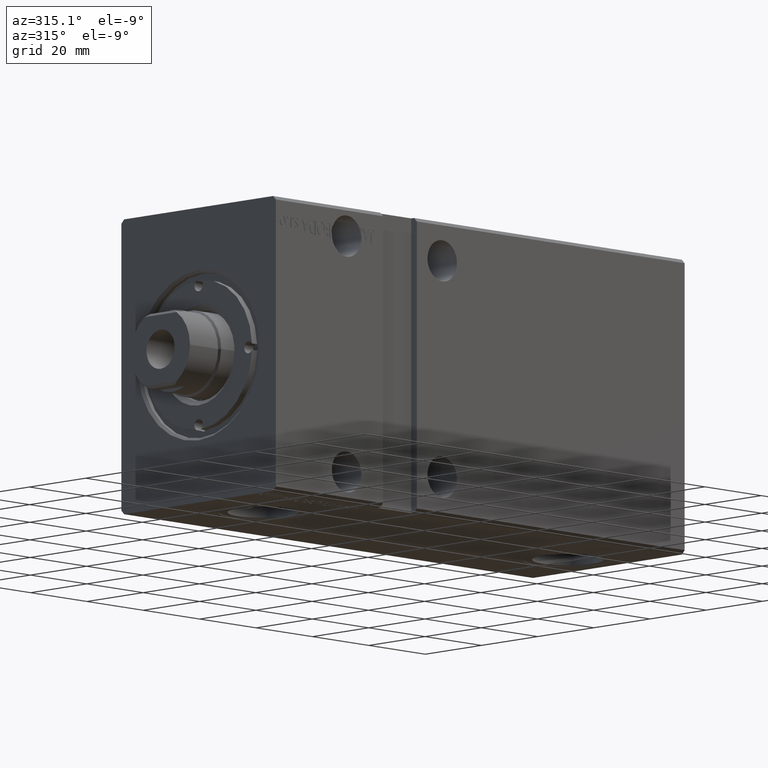
[diagram: clean part render]
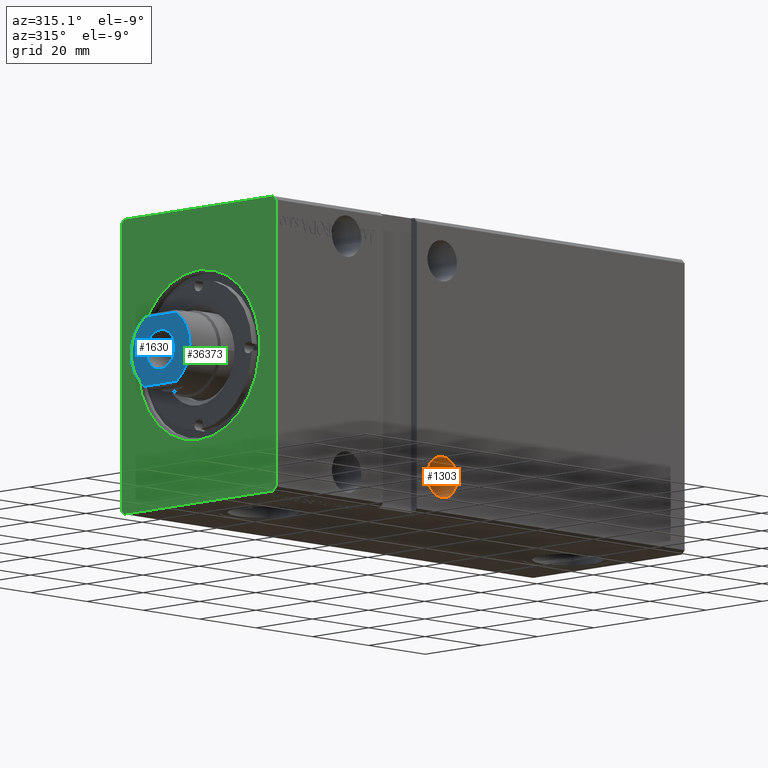
[diagram: same view with three faces highlighted in distinct colors, each labeled with its STEP entity id]
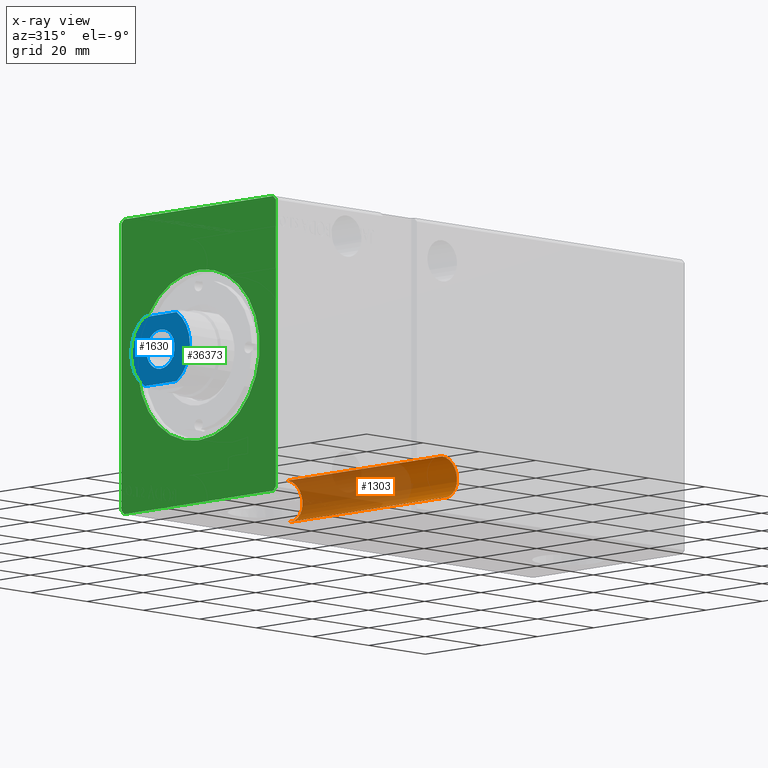
[diagram: x-ray of the same camera — body ghosted, the three highlighted faces saturated]
A machine part, auxiliary view with three faces highlighted in distinct colors.
The next image is the same camera in x-ray (body ghosted, the three faces saturated) — at least one of them is partly hidden behind the body in this view.
Their STEP definitions:

[orange] entity #1303 — the highlighted cylindrical surface (edge-blend (fillet) strip) has radius 5.25 mm, axis along (-0, -1, -0).
#1303 = ADVANCED_FACE ( 'NONE', ( #11130 ), #25759, .F. ) ;
#2479 = ORIENTED_EDGE ( 'NONE', *, *, #24498, .F. ) ;
#6162 = VECTOR ( 'NONE', #18278, 1000.000000000000000 ) ;
#8673 = DIRECTION ( 'NONE',  ( 0.000000000000000000, 0.000000000000000000, -1.000000000000000000 ) ) ;
#9366 = AXIS2_PLACEMENT_3D ( 'NONE', #23878, #36058, #8673 ) ;
#9767 = VERTEX_POINT ( 'NONE', #25660 ) ;
#9805 = VERTEX_POINT ( 'NONE', #28672 ) ;
#10534 = DIRECTION ( 'NONE',  ( -0.000000000000000000, -1.000000000000000000, -5.507058653894626469E-17 ) ) ;
#10792 = CARTESIAN_POINT ( 'NONE',  ( 59.00000000000001421, 27.50000000000001066, -32.75000000000000711 ) ) ;
#11057 = LINE ( 'NONE', #26076, #25307 ) ;
#11130 = FACE_OUTER_BOUND ( 'NONE', #13575, .T. ) ;
#13575 = EDGE_LOOP ( 'NONE', ( #21976, #2479, #20693, #24680 ) ) ;
#13950 = DIRECTION ( 'NONE',  ( 0.000000000000000000, 0.000000000000000000, -1.000000000000000000 ) ) ;
#14848 = EDGE_CURVE ( 'NONE', #33471, #9767, #15676, .T. ) ;
#15676 = LINE ( 'NONE', #24666, #6162 ) ;
#16793 = CARTESIAN_POINT ( 'NONE',  ( 59.00000000000001421, 27.50000000000001066, -22.25000000000000000 ) ) ;
#17158 = CARTESIAN_POINT ( 'NONE',  ( 59.00000000000001421, 62.50000000000002842, -27.50000000000000000 ) ) ;
#18278 = DIRECTION ( 'NONE',  ( -0.000000000000000000, -1.000000000000000000, -5.507058653894626469E-17 ) ) ;
#18982 = CIRCLE ( 'NONE', #9366, 5.250000000000004441 ) ;
#19940 = AXIS2_PLACEMENT_3D ( 'NONE', #17158, #10534, #13950 ) ;
#20693 = ORIENTED_EDGE ( 'NONE', *, *, #14848, .T. ) ;
#21976 = ORIENTED_EDGE ( 'NONE', *, *, #37158, .F. ) ;
#22674 = CARTESIAN_POINT ( 'NONE',  ( 59.00000000000001421, -27.50000000000000355, -27.50000000000000355 ) ) ;
#22733 = VERTEX_POINT ( 'NONE', #16793 ) ;
#23878 = CARTESIAN_POINT ( 'NONE',  ( 59.00000000000001421, 27.50000000000001066, -27.50000000000000355 ) ) ;
#24064 = CIRCLE ( 'NONE', #25972, 5.250000000000004441 ) ;
#24498 = EDGE_CURVE ( 'NONE', #33471, #22733, #18982, .T. ) ;
#24666 = CARTESIAN_POINT ( 'NONE',  ( 59.00000000000001421, 62.50000000000002842, -32.75000000000000000 ) ) ;
#24680 = ORIENTED_EDGE ( 'NONE', *, *, #30260, .T. ) ;
#25307 = VECTOR ( 'NONE', #26277, 1000.000000000000000 ) ;
#25660 = CARTESIAN_POINT ( 'NONE',  ( 59.00000000000001421, -27.50000000000000355, -32.75000000000000711 ) ) ;
#25759 = CYLINDRICAL_SURFACE ( 'NONE', #19940, 5.250000000000000888 ) ;
#25972 = AXIS2_PLACEMENT_3D ( 'NONE', #22674, #34293, #31680 ) ;
#26076 = CARTESIAN_POINT ( 'NONE',  ( 59.00000000000001421, 62.50000000000002842, -22.24999999999999645 ) ) ;
#26277 = DIRECTION ( 'NONE',  ( -0.000000000000000000, -1.000000000000000000, -5.507058653894626469E-17 ) ) ;
#28672 = CARTESIAN_POINT ( 'NONE',  ( 59.00000000000001421, -27.50000000000000355, -22.25000000000000000 ) ) ;
#30260 = EDGE_CURVE ( 'NONE', #9767, #9805, #24064, .T. ) ;
#31680 = DIRECTION ( 'NONE',  ( 0.000000000000000000, 0.000000000000000000, -1.000000000000000000 ) ) ;
#33471 = VERTEX_POINT ( 'NONE', #10792 ) ;
#34293 = DIRECTION ( 'NONE',  ( 0.000000000000000000, -1.000000000000000000, -5.507058653894625853E-17 ) ) ;
#36058 = DIRECTION ( 'NONE',  ( 0.000000000000000000, -1.000000000000000000, -4.752667057470704875E-17 ) ) ;
#37158 = EDGE_CURVE ( 'NONE', #22733, #9805, #11057, .T. ) ;

[blue] entity #1630 — the highlighted planar face has unit normal (1, 0, 0).
#147 = ORIENTED_EDGE ( 'NONE', *, *, #5950, .T. ) ;
#449 = VERTEX_POINT ( 'NONE', #37754 ) ;
#1129 = VERTEX_POINT ( 'NONE', #33390 ) ;
#1321 = CARTESIAN_POINT ( 'NONE',  ( 1.280980551908131330E-15, 10.45999999999997598, 128.5000000000000000 ) ) ;
#1630 = ADVANCED_FACE ( 'NONE', ( #38662, #39252 ), #11682, .F. ) ;
#2312 = CARTESIAN_POINT ( 'NONE',  ( 0.000000000000000000, 10.45999999999997598, 128.5000000000000000 ) ) ;
#5348 = ORIENTED_EDGE ( 'NONE', *, *, #18364, .T. ) ;
#5950 = EDGE_CURVE ( 'NONE', #449, #34960, #25154, .T. ) ;
#6265 = CIRCLE ( 'NONE', #17121, 5.000000000000000000 ) ;
#8309 = DIRECTION ( 'NONE',  ( 1.000000000000000000, 0.000000000000000000, 0.000000000000000000 ) ) ;
#8428 = CIRCLE ( 'NONE', #18658, 10.46000000000000085 ) ;
#8720 = AXIS2_PLACEMENT_3D ( 'NONE', #12514, #39503, #33711 ) ;
#10767 = CARTESIAN_POINT ( 'NONE',  ( 8.790000000000038227, 10.45999999999997598, 128.5000000000000000 ) ) ;
#10979 = ORIENTED_EDGE ( 'NONE', *, *, #32796, .T. ) ;
#11263 = VECTOR ( 'NONE', #11378, 1000.000000000000000 ) ;
#11302 = CARTESIAN_POINT ( 'NONE',  ( 0.000000000000000000, -2.347913156297551696E-14, 128.5000000000000000 ) ) ;
#11328 = CARTESIAN_POINT ( 'NONE',  ( -8.790000000000038227, 5.669876541865709996, 128.5000000000000000 ) ) ;
#11378 = DIRECTION ( 'NONE',  ( 0.000000000000000000, 1.000000000000000000, 1.827169771437783368E-16 ) ) ;
#11669 = CIRCLE ( 'NONE', #25099, 5.000000000000000000 ) ;
#11682 = PLANE ( 'NONE',  #33342 ) ;
#12514 = CARTESIAN_POINT ( 'NONE',  ( 0.000000000000000000, -2.347913156297551696E-14, 128.5000000000000000 ) ) ;
#14644 = EDGE_LOOP ( 'NONE', ( #33373, #17943 ) ) ;
#15589 = DIRECTION ( 'NONE',  ( 0.000000000000000000, -1.000000000000000000, 0.000000000000000000 ) ) ;
#15781 = CARTESIAN_POINT ( 'NONE',  ( 0.000000000000000000, -2.347913156297551696E-14, 128.5000000000000000 ) ) ;
#16477 = DIRECTION ( 'NONE',  ( 0.000000000000000000, -1.000000000000000000, 0.000000000000000000 ) ) ;
#16634 = EDGE_CURVE ( 'NONE', #38372, #1129, #11669, .T. ) ;
#16915 = CARTESIAN_POINT ( 'NONE',  ( 0.000000000000000000, -2.347913156297551696E-14, 128.5000000000000000 ) ) ;
#17121 = AXIS2_PLACEMENT_3D ( 'NONE', #11302, #17122, #8309 ) ;
#17122 = DIRECTION ( 'NONE',  ( 0.000000000000000000, 0.000000000000000000, 1.000000000000000000 ) ) ;
#17344 = CARTESIAN_POINT ( 'NONE',  ( -8.790000000000038227, -5.669876541865757069, 128.5000000000000000 ) ) ;
#17943 = ORIENTED_EDGE ( 'NONE', *, *, #27381, .F. ) ;
#18093 = DIRECTION ( 'NONE',  ( 0.000000000000000000, 1.827169771437783368E-16, -1.000000000000000000 ) ) ;
#18364 = EDGE_CURVE ( 'NONE', #34960, #23057, #8428, .T. ) ;
#18658 = AXIS2_PLACEMENT_3D ( 'NONE', #15781, #23977, #24569 ) ;
#19328 = EDGE_LOOP ( 'NONE', ( #10979, #29909, #37333, #147, #5348, #36926 ) ) ;
#19609 = AXIS2_PLACEMENT_3D ( 'NONE', #26258, #38618, #16477 ) ;
#20120 = DIRECTION ( 'NONE',  ( 0.000000000000000000, 0.000000000000000000, 1.000000000000000000 ) ) ;
#20624 = VERTEX_POINT ( 'NONE', #35001 ) ;
#20830 = CIRCLE ( 'NONE', #8720, 10.46000000000000085 ) ;
#22392 = CARTESIAN_POINT ( 'NONE',  ( -8.790000000000038227, 10.45999999999997598, 128.5000000000000000 ) ) ;
#23057 = VERTEX_POINT ( 'NONE', #11328 ) ;
#23204 = CARTESIAN_POINT ( 'NONE',  ( 0.000000000000000000, -10.46000000000002395, 128.5000000000000000 ) ) ;
#23977 = DIRECTION ( 'NONE',  ( -0.000000000000000000, -1.827169771437783368E-16, 1.000000000000000000 ) ) ;
#24569 = DIRECTION ( 'NONE',  ( 0.000000000000000000, -1.000000000000000000, 0.000000000000000000 ) ) ;
#25099 = AXIS2_PLACEMENT_3D ( 'NONE', #16915, #20120, #35490 ) ;
#25154 = CIRCLE ( 'NONE', #37268, 10.46000000000000085 ) ;
#25983 = LINE ( 'NONE', #10767, #11263 ) ;
#26258 = CARTESIAN_POINT ( 'NONE',  ( 0.000000000000000000, -2.347913156297551696E-14, 128.5000000000000000 ) ) ;
#27381 = EDGE_CURVE ( 'NONE', #1129, #38372, #6265, .T. ) ;
#28203 = LINE ( 'NONE', #22392, #28514 ) ;
#28514 = VECTOR ( 'NONE', #37571, 1000.000000000000000 ) ;
#28694 = EDGE_CURVE ( 'NONE', #23057, #36500, #28203, .T. ) ;
#28848 = EDGE_CURVE ( 'NONE', #20624, #449, #25983, .T. ) ;
#29909 = ORIENTED_EDGE ( 'NONE', *, *, #35228, .T. ) ;
#30285 = DIRECTION ( 'NONE',  ( 0.000000000000000000, 1.000000000000000000, 1.827169771437783368E-16 ) ) ;
#32796 = EDGE_CURVE ( 'NONE', #36500, #36412, #20830, .T. ) ;
#33342 = AXIS2_PLACEMENT_3D ( 'NONE', #2312, #18093, #30285 ) ;
#33373 = ORIENTED_EDGE ( 'NONE', *, *, #16634, .F. ) ;
#33390 = CARTESIAN_POINT ( 'NONE',  ( -5.000000000000000000, -2.286680816340184122E-14, 128.5000000000000000 ) ) ;
#33639 = CIRCLE ( 'NONE', #19609, 10.46000000000000085 ) ;
#33711 = DIRECTION ( 'NONE',  ( 0.000000000000000000, -1.000000000000000000, 0.000000000000000000 ) ) ;
#34960 = VERTEX_POINT ( 'NONE', #1321 ) ;
#35001 = CARTESIAN_POINT ( 'NONE',  ( 8.790000000000038227, -5.669876541865757069, 128.5000000000000000 ) ) ;
#35228 = EDGE_CURVE ( 'NONE', #36412, #20624, #33639, .T. ) ;
#35490 = DIRECTION ( 'NONE',  ( 1.000000000000000000, 0.000000000000000000, 0.000000000000000000 ) ) ;
#36412 = VERTEX_POINT ( 'NONE', #23204 ) ;
#36500 = VERTEX_POINT ( 'NONE', #17344 ) ;
#36926 = ORIENTED_EDGE ( 'NONE', *, *, #28694, .T. ) ;
#36957 = DIRECTION ( 'NONE',  ( -0.000000000000000000, -1.827169771437783368E-16, 1.000000000000000000 ) ) ;
#37268 = AXIS2_PLACEMENT_3D ( 'NONE', #37550, #36957, #15589 ) ;
#37333 = ORIENTED_EDGE ( 'NONE', *, *, #28848, .T. ) ;
#37370 = CARTESIAN_POINT ( 'NONE',  ( 5.000000000000000000, -2.347913156297551696E-14, 128.5000000000000000 ) ) ;
#37550 = CARTESIAN_POINT ( 'NONE',  ( 0.000000000000000000, -2.347913156297551696E-14, 128.5000000000000000 ) ) ;
#37571 = DIRECTION ( 'NONE',  ( 0.000000000000000000, -1.000000000000000000, -1.827169771437783368E-16 ) ) ;
#37754 = CARTESIAN_POINT ( 'NONE',  ( 8.790000000000038227, 5.669876541865709996, 128.5000000000000000 ) ) ;
#38372 = VERTEX_POINT ( 'NONE', #37370 ) ;
#38618 = DIRECTION ( 'NONE',  ( -0.000000000000000000, -1.827169771437783368E-16, 1.000000000000000000 ) ) ;
#38662 = FACE_BOUND ( 'NONE', #14644, .T. ) ;
#39252 = FACE_OUTER_BOUND ( 'NONE', #19328, .T. ) ;
#39503 = DIRECTION ( 'NONE',  ( -0.000000000000000000, -1.827169771437783368E-16, 1.000000000000000000 ) ) ;

[green] entity #36373 — the highlighted planar face has unit normal (1, 0, 0).
#17 = VERTEX_POINT ( 'NONE', #8268 ) ;
#161 = DIRECTION ( 'NONE',  ( 0.000000000000000000, -4.752667057470704875E-17, 1.000000000000000000 ) ) ;
#361 = VERTEX_POINT ( 'NONE', #30789 ) ;
#846 = DIRECTION ( 'NONE',  ( 1.000000000000000000, 0.000000000000000000, 0.000000000000000000 ) ) ;
#1538 = VERTEX_POINT ( 'NONE', #7292 ) ;
#1723 = CARTESIAN_POINT ( 'NONE',  ( 0.000000000000000000, 0.000000000000000000, 21.70000000000000995 ) ) ;
#2348 = AXIS2_PLACEMENT_3D ( 'NONE', #28234, #846, #15445 ) ;
#2359 = LINE ( 'NONE', #14546, #34268 ) ;
#2523 = ORIENTED_EDGE ( 'NONE', *, *, #36010, .F. ) ;
#2685 = LINE ( 'NONE', #26694, #5732 ) ;
#2830 = LINE ( 'NONE', #30019, #20021 ) ;
#3138 = EDGE_CURVE ( 'NONE', #11234, #15335, #19645, .T. ) ;
#3259 = FACE_BOUND ( 'NONE', #25700, .T. ) ;
#3382 = ORIENTED_EDGE ( 'NONE', *, *, #6873, .T. ) ;
#3889 = CARTESIAN_POINT ( 'NONE',  ( 0.000000000000000000, -26.50000000000000711, 37.50000000000000711 ) ) ;
#3923 = EDGE_LOOP ( 'NONE', ( #4566, #19620, #14839, #14338, #7471, #7007, #2523, #19530 ) ) ;
#4566 = ORIENTED_EDGE ( 'NONE', *, *, #8533, .F. ) ;
#4650 = VECTOR ( 'NONE', #161, 1000.000000000000000 ) ;
#5732 = VECTOR ( 'NONE', #39041, 1000.000000000000114 ) ;
#6150 = VECTOR ( 'NONE', #22076, 1000.000000000000114 ) ;
#6848 = EDGE_CURVE ( 'NONE', #19059, #37058, #2830, .T. ) ;
#6873 = EDGE_CURVE ( 'NONE', #15335, #11234, #37237, .T. ) ;
#7007 = ORIENTED_EDGE ( 'NONE', *, *, #33846, .F. ) ;
#7292 = CARTESIAN_POINT ( 'NONE',  ( 0.000000000000000000, 26.50000000000000355, 37.50000000000000711 ) ) ;
#7471 = ORIENTED_EDGE ( 'NONE', *, *, #28359, .F. ) ;
#7512 = VERTEX_POINT ( 'NONE', #29326 ) ;
#8028 = VECTOR ( 'NONE', #34095, 1000.000000000000000 ) ;
#8268 = CARTESIAN_POINT ( 'NONE',  ( 0.000000000000000000, -26.50000000000000711, 37.50000000000000711 ) ) ;
#8533 = EDGE_CURVE ( 'NONE', #15480, #1538, #2685, .T. ) ;
#8659 = CARTESIAN_POINT ( 'NONE',  ( 0.000000000000000000, 26.50000000000000711, -37.49999999999999289 ) ) ;
#9226 = CARTESIAN_POINT ( 'NONE',  ( 0.000000000000000000, 0.000000000000000000, 0.000000000000000000 ) ) ;
#9866 = LINE ( 'NONE', #3889, #6150 ) ;
#10099 = CARTESIAN_POINT ( 'NONE',  ( 0.000000000000000000, 27.50000000000000711, -36.49999999999999289 ) ) ;
#11234 = VERTEX_POINT ( 'NONE', #27756 ) ;
#11814 = EDGE_CURVE ( 'NONE', #37058, #33978, #32463, .T. ) ;
#11943 = LINE ( 'NONE', #26774, #4650 ) ;
#12516 = VECTOR ( 'NONE', #37618, 1000.000000000000114 ) ;
#13109 = CARTESIAN_POINT ( 'NONE',  ( 0.000000000000000000, 26.50000000000000355, 37.50000000000000711 ) ) ;
#13231 = PLANE ( 'NONE',  #2348 ) ;
#14338 = ORIENTED_EDGE ( 'NONE', *, *, #6848, .F. ) ;
#14546 = CARTESIAN_POINT ( 'NONE',  ( 0.000000000000000000, -27.50000000000000711, 36.50000000000000711 ) ) ;
#14839 = ORIENTED_EDGE ( 'NONE', *, *, #11814, .F. ) ;
#15335 = VERTEX_POINT ( 'NONE', #1723 ) ;
#15445 = DIRECTION ( 'NONE',  ( 0.000000000000000000, 0.000000000000000000, -1.000000000000000000 ) ) ;
#15480 = VERTEX_POINT ( 'NONE', #30491 ) ;
#16492 = EDGE_CURVE ( 'NONE', #33978, #15480, #11943, .T. ) ;
#17712 = CARTESIAN_POINT ( 'NONE',  ( 0.000000000000000000, -26.50000000000000355, -37.49999999999999289 ) ) ;
#18026 = VECTOR ( 'NONE', #20286, 1000.000000000000114 ) ;
#18210 = DIRECTION ( 'NONE',  ( 0.000000000000000000, 1.000000000000000000, 0.000000000000000000 ) ) ;
#19059 = VERTEX_POINT ( 'NONE', #17712 ) ;
#19530 = ORIENTED_EDGE ( 'NONE', *, *, #30999, .F. ) ;
#19620 = ORIENTED_EDGE ( 'NONE', *, *, #16492, .F. ) ;
#19645 = CIRCLE ( 'NONE', #33036, 21.70000000000000995 ) ;
#20021 = VECTOR ( 'NONE', #18210, 1000.000000000000000 ) ;
#20286 = DIRECTION ( 'NONE',  ( 0.000000000000000000, 0.7071067811865474617, 0.7071067811865474617 ) ) ;
#21647 = DIRECTION ( 'NONE',  ( 0.000000000000000000, 0.000000000000000000, -1.000000000000000000 ) ) ;
#22076 = DIRECTION ( 'NONE',  ( 0.000000000000000000, -0.7071067811865474617, -0.7071067811865474617 ) ) ;
#23628 = DIRECTION ( 'NONE',  ( 1.000000000000000000, 0.000000000000000000, 0.000000000000000000 ) ) ;
#25508 = LINE ( 'NONE', #13109, #8028 ) ;
#25700 = EDGE_LOOP ( 'NONE', ( #3382, #25748 ) ) ;
#25748 = ORIENTED_EDGE ( 'NONE', *, *, #3138, .T. ) ;
#26694 = CARTESIAN_POINT ( 'NONE',  ( 0.000000000000000000, 27.50000000000000355, 36.50000000000000711 ) ) ;
#26774 = CARTESIAN_POINT ( 'NONE',  ( 0.000000000000000000, 27.50000000000000711, -36.49999999999999289 ) ) ;
#27221 = DIRECTION ( 'NONE',  ( 0.000000000000000000, 0.000000000000000000, -1.000000000000000000 ) ) ;
#27336 = DIRECTION ( 'NONE',  ( 0.000000000000000000, 4.752667057470705491E-17, -1.000000000000000000 ) ) ;
#27756 = CARTESIAN_POINT ( 'NONE',  ( 0.000000000000000000, 2.657483554149757921E-15, -21.70000000000000995 ) ) ;
#28049 = DIRECTION ( 'NONE',  ( 1.000000000000000000, 0.000000000000000000, 0.000000000000000000 ) ) ;
#28234 = CARTESIAN_POINT ( 'NONE',  ( 0.000000000000000000, 0.000000000000000000, 0.000000000000000000 ) ) ;
#28359 = EDGE_CURVE ( 'NONE', #7512, #19059, #28649, .T. ) ;
#28649 = LINE ( 'NONE', #28833, #12516 ) ;
#28833 = CARTESIAN_POINT ( 'NONE',  ( 0.000000000000000000, -27.50000000000000355, -36.49999999999998579 ) ) ;
#29326 = CARTESIAN_POINT ( 'NONE',  ( 0.000000000000000000, -27.50000000000000355, -36.49999999999998579 ) ) ;
#30019 = CARTESIAN_POINT ( 'NONE',  ( 0.000000000000000000, -26.50000000000000355, -37.49999999999999289 ) ) ;
#30491 = CARTESIAN_POINT ( 'NONE',  ( 0.000000000000000000, 27.50000000000000355, 36.50000000000000711 ) ) ;
#30789 = CARTESIAN_POINT ( 'NONE',  ( 0.000000000000000000, -27.50000000000000711, 36.50000000000000711 ) ) ;
#30999 = EDGE_CURVE ( 'NONE', #1538, #17, #25508, .T. ) ;
#31224 = FACE_OUTER_BOUND ( 'NONE', #3923, .T. ) ;
#32463 = LINE ( 'NONE', #8659, #18026 ) ;
#32997 = CARTESIAN_POINT ( 'NONE',  ( 0.000000000000000000, 0.000000000000000000, 0.000000000000000000 ) ) ;
#33036 = AXIS2_PLACEMENT_3D ( 'NONE', #9226, #28049, #21647 ) ;
#33846 = EDGE_CURVE ( 'NONE', #361, #7512, #2359, .T. ) ;
#33978 = VERTEX_POINT ( 'NONE', #10099 ) ;
#34095 = DIRECTION ( 'NONE',  ( 0.000000000000000000, -1.000000000000000000, 0.000000000000000000 ) ) ;
#34268 = VECTOR ( 'NONE', #27336, 1000.000000000000000 ) ;
#36010 = EDGE_CURVE ( 'NONE', #17, #361, #9866, .T. ) ;
#36373 = ADVANCED_FACE ( 'NONE', ( #3259, #31224 ), #13231, .F. ) ;
#37058 = VERTEX_POINT ( 'NONE', #37267 ) ;
#37237 = CIRCLE ( 'NONE', #37893, 21.70000000000000995 ) ;
#37267 = CARTESIAN_POINT ( 'NONE',  ( 0.000000000000000000, 26.50000000000000711, -37.49999999999999289 ) ) ;
#37618 = DIRECTION ( 'NONE',  ( 0.000000000000000000, 0.7071067811865451302, -0.7071067811865500152 ) ) ;
#37893 = AXIS2_PLACEMENT_3D ( 'NONE', #32997, #23628, #27221 ) ;
#39041 = DIRECTION ( 'NONE',  ( 0.000000000000000000, -0.7071067811865474617, 0.7071067811865474617 ) ) ;